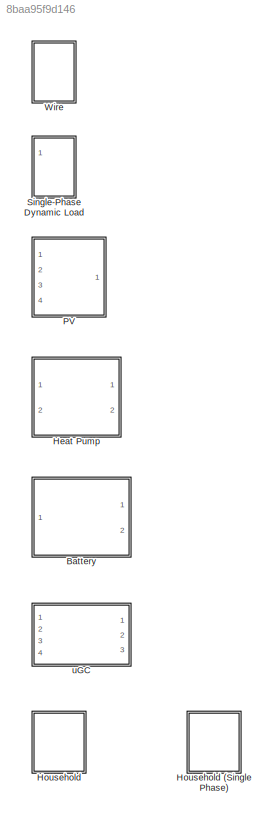
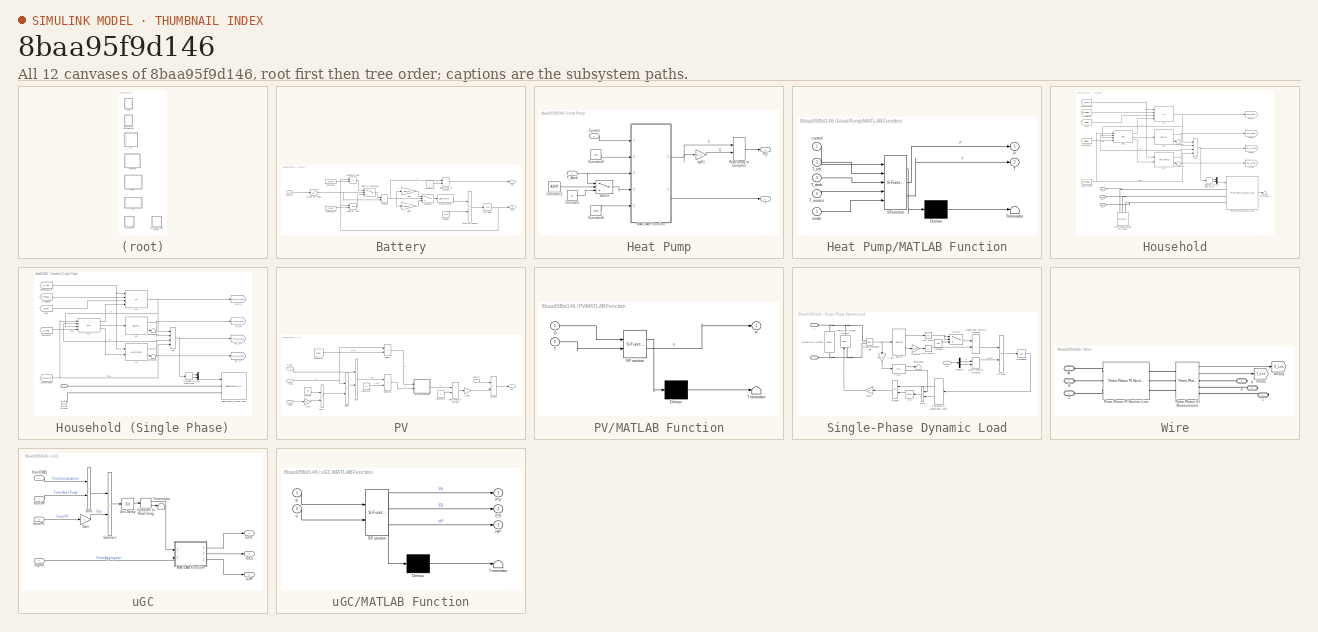
[diagram: thumbnail index - all 12 canvases of the model, root first then tree order]
MODEL slx_8baa95f9d146
KIND library
CONFIG AbsTol = auto
CONFIG EnableMultiTasking = off
CONFIG FixedStep = auto
CONFIG MaxStep = auto
CONFIG MinStep = auto
CONFIG RelTol = 1e-3
CONFIG SampleTimeConstraint = Unconstrained
CONFIG SolverName = VariableStepAuto
CONFIG StartTime = 0.0
CONFIG StopTime = 10.0
BLOCK [SubSystem] Battery
  Ports = [1, 2]
  RequestExecContextInheritance = off
BLOCK [Constant] Battery/Capacity
  Value = Cap
BLOCK [Constant] Battery/Constant2
  Value = SoCmax
BLOCK [Constant] Battery/Constant3
  Value = SoCmin
BLOCK [Constant] Battery/Constant4
  Value = 0
BLOCK [Inport] Battery/Control
BLOCK [Switch] Battery/Depth of Discharge
  Criteria = u2 > Threshold
  InputSameDT = off
  SaturateOnIntegerOverflow = off
BLOCK [Switch] Battery/Efficiency
  Criteria = u2 > Threshold
  InputSameDT = off
  SaturateOnIntegerOverflow = off
BLOCK [Gain] Battery/Gain
  Gain = eta_in
BLOCK [Gain] Battery/Gain1
  Gain = 1/eta_out
BLOCK [Saturate] Battery/Maximum Power
  LowerLimit = Pout
  UpperLimit = Pin
BLOCK [RelationalOperator] Battery/Maximum SoC
  InputSameDT = off
  Operator = <=
  OutDataTypeStr = boolean
  Ports = [2, 1]
  RndMeth = Simplest
BLOCK [RelationalOperator] Battery/Minimum SoC
  InputSameDT = off
  OutDataTypeStr = boolean
  Ports = [2, 1]
  RndMeth = Simplest
BLOCK [Outport] Battery/PQ
BLOCK [Product] Battery/Product
  Ports = [2, 1]
BLOCK [RealImagToComplex] Battery/Real-Imag to Complex
  Ports = [2, 1]
BLOCK [Outport] Battery/SoC
  Port = 2
BLOCK [Product] Battery/State of Charge
  Inputs = */
  Ports = [2, 1]
BLOCK [DiscreteIntegrator] Battery/Stored Energy
  ICPrevOutput = DiscIntNeverNeededParam
  ICPrevScaledInput = DiscIntNeverNeededParam
  InitialCondition = Cap*SoCin
  InitialConditionSetting = Auto
  IntegratorMethod = Integration: Backward Euler
  LimitOutput = on
  LowerSaturationLimit = 0
  Ports = [1, 1]
  SampleTime = 1e-4
  UpperSaturationLimit = Cap
BLOCK [UnitDelay] Battery/Unit Delay
  HasFrameUpgradeWarning = on
  SampleTime = -1
BLOCK [SubSystem] Heat Pump
  Ports = [2, 2]
  RequestExecContextInheritance = off
BLOCK [Constant] Heat Pump/Constant
  Value = 13
BLOCK [Constant] Heat Pump/Constant1
  Value = ASHP
BLOCK [Constant] Heat Pump/Constant2
  Value = Tset
BLOCK [Constant] Heat Pump/Constant6
  Value = Mode
BLOCK [Inport] Heat Pump/Control
  Port = 2
BLOCK [SubSystem] Heat Pump/MATLAB Function
  ErrorFcn = Stateflow.Translate.translate
  PermitHierarchicalResolution = ExplicitOnly
  Ports = [5, 2]
  RequestExecContextInheritance = off
  SFBlockType = MATLAB Function
  SystemSampleTime = MFSystemSampleTime
  TreatAsAtomicUnit = on
BLOCK [Demux] Heat Pump/MATLAB Function/ Demux 
  Outputs = 1
  Ports = [1, 1]
BLOCK [S-Function] Heat Pump/MATLAB Function/ SFunction 
  EnableBusSupport = on
  FunctionName = sf_sfun
  Parameters = C,H,P_HP,T_init,coeffs,tequiv
  PortCounts = [5 3]
  Ports = [5, 3]
  SFcnIsStateOwnerBlock = off
  SFunctionDeploymentMode = off
  Tag = Stateflow S-Function 4
BLOCK [Terminator] Heat Pump/MATLAB Function/ Terminator 
BLOCK [Outport] Heat Pump/MATLAB Function/P
BLOCK [Outport] Heat Pump/MATLAB Function/T
  Port = 2
BLOCK [Inport] Heat Pump/MATLAB Function/T_amb
  Port = 3
BLOCK [Inport] Heat Pump/MATLAB Function/T_set
  Port = 2
BLOCK [Inport] Heat Pump/MATLAB Function/T_source
  Port = 4
BLOCK [Inport] Heat Pump/MATLAB Function/control
BLOCK [Inport] Heat Pump/MATLAB Function/mode
  Port = 5
BLOCK [Outport] Heat Pump/PQ
BLOCK [RealImagToComplex] Heat Pump/Real-Imag to Complex
  Ports = [2, 1]
BLOCK [Switch] Heat Pump/Switch
  Criteria = u2 > Threshold
  InputSameDT = off
  SaturateOnIntegerOverflow = off
  Threshold = 0.5
BLOCK [Outport] Heat Pump/T
  Port = 2
BLOCK [Inport] Heat Pump/T_Amb
BLOCK [Gain] Heat Pump/tg(fi)
  Gain = sqrt(1-cosfi^2)/cosfi
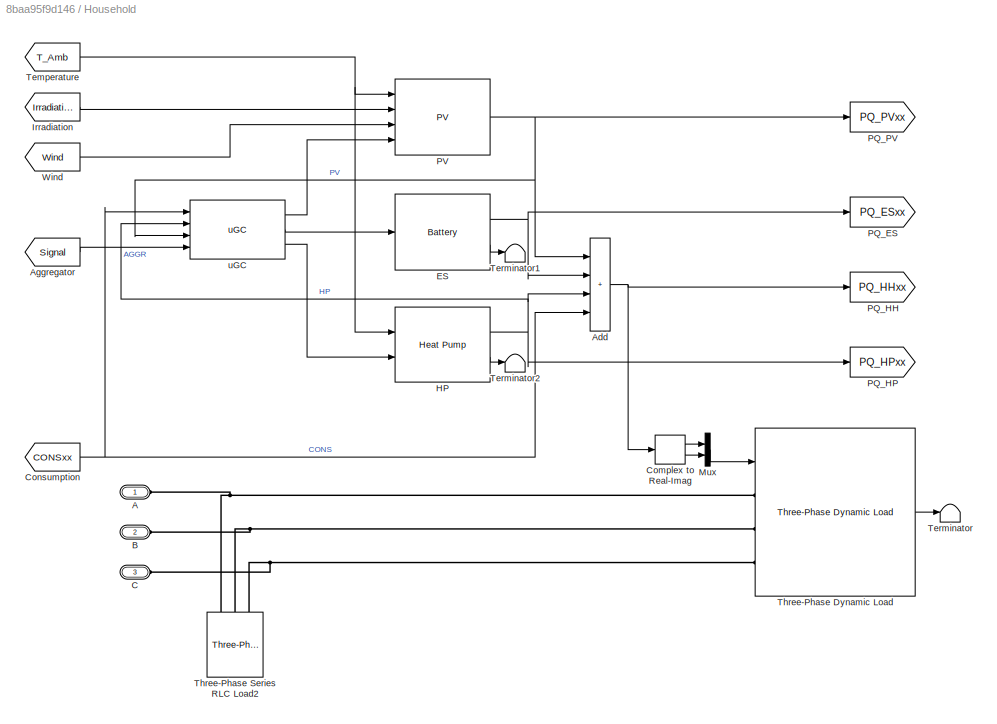
BLOCK [SubSystem] Household
  Ports = [0, 0, 0, 0, 0, 3]
  RequestExecContextInheritance = off
BLOCK [SubSystem] Household (Single Phase)
  Ports = [0, 0, 0, 0, 0, 1]
  RequestExecContextInheritance = off
BLOCK [PMIOPort] Household (Single Phase)/+
  Side = Left
BLOCK [Sum] Household (Single Phase)/Add
  IconShape = rectangular
  Inputs = 4
  Ports = [4, 1]
BLOCK [From] Household (Single Phase)/Aggregator
  GotoTag = Signal
BLOCK [ComplexToRealImag] Household (Single Phase)/Complex to Real-Imag
  Ports = [1, 2]
BLOCK [From] Household (Single Phase)/Consumption
  GotoTag = CONSxx
BLOCK [Reference] Household (Single Phase)/ES  REF=$bdroot/Battery
  Ports = [1, 2]
  SourceBlock = $bdroot/Battery
  SourceType = Battery (Three Phase)
BLOCK [Reference] Household (Single Phase)/Ground  REF=spsGroundLib/Ground
  NameLocation = right
  Ports = [0, 0, 0, 0, 0, 1]
  SourceBlock = spsGroundLib/Ground
  SourceProductBaseCode = PS
  SourceType = Ground
BLOCK [Reference] Household (Single Phase)/HP  REF=$bdroot/Heat Pump
  Ports = [2, 2]
  SourceBlock = $bdroot/Heat Pump
  SourceType = Heat Pump (Three Phase)
BLOCK [From] Household (Single Phase)/Irradiation
  GotoTag = Irradiation
  TagVisibility = global
BLOCK [Mux] Household (Single Phase)/Mux
  DisplayOption = bar
  Inputs = 2
  Ports = [2, 1]
BLOCK [Goto] Household (Single Phase)/PQ_ES
  GotoTag = PQ_ESxx
BLOCK [Goto] Household (Single Phase)/PQ_HH
  GotoTag = PQ_HHxx
BLOCK [Goto] Household (Single Phase)/PQ_HP
  GotoTag = PQ_HPxx
BLOCK [Goto] Household (Single Phase)/PQ_PV
  GotoTag = PQ_PVxx
BLOCK [Reference] Household (Single Phase)/PV  REF=$bdroot/PV
  Ports = [4, 1]
  SourceBlock = $bdroot/PV
  SourceType = PV (Three Phase)
BLOCK [Reference] Household (Single Phase)/Single-Phase Dynamic Load  REF=$bdroot/Single-Phase
Dynamic Load
  Ports = [1, 0, 0, 0, 0, 2]
  SourceBlock = $bdroot/Single-Phase\nDynamic Load
  SourceType = Single-Phase Dynamic Load
BLOCK [From] Household (Single Phase)/Temperature
  GotoTag = T_Amb
  TagVisibility = global
BLOCK [Terminator] Household (Single Phase)/Terminator1
BLOCK [Terminator] Household (Single Phase)/Terminator2
BLOCK [From] Household (Single Phase)/Wind
  GotoTag = Wind
  TagVisibility = global
BLOCK [Reference] Household (Single Phase)/uGC  REF=$bdroot/uGC
  Ports = [4, 3]
  SourceBlock = $bdroot/uGC
  SourceType = Microgrid Controller
BLOCK [PMIOPort] Household/A
  Side = Left
BLOCK [Sum] Household/Add
  IconShape = rectangular
  Inputs = 4
  Ports = [4, 1]
BLOCK [From] Household/Aggregator
  GotoTag = Signal
BLOCK [PMIOPort] Household/B
  Port = 2
  Side = Left
BLOCK [PMIOPort] Household/C
  Port = 3
  Side = Left
BLOCK [ComplexToRealImag] Household/Complex to Real-Imag
  Ports = [1, 2]
BLOCK [From] Household/Consumption
  GotoTag = CONSxx
BLOCK [Reference] Household/ES  REF=$bdroot/Battery
  Ports = [1, 2]
  SourceBlock = $bdroot/Battery
  SourceType = Battery (Three Phase)
BLOCK [Reference] Household/HP  REF=$bdroot/Heat Pump
  Ports = [2, 2]
  SourceBlock = $bdroot/Heat Pump
  SourceType = Heat Pump (Three Phase)
BLOCK [From] Household/Irradiation
  GotoTag = Irradiation
  TagVisibility = global
BLOCK [Mux] Household/Mux
  DisplayOption = bar
  Inputs = 2
  Ports = [2, 1]
BLOCK [Goto] Household/PQ_ES
  GotoTag = PQ_ESxx
BLOCK [Goto] Household/PQ_HH
  GotoTag = PQ_HHxx
BLOCK [Goto] Household/PQ_HP
  GotoTag = PQ_HPxx
BLOCK [Goto] Household/PQ_PV
  GotoTag = PQ_PVxx
BLOCK [Reference] Household/PV  REF=$bdroot/PV
  Ports = [4, 1]
  SourceBlock = $bdroot/PV
  SourceType = PV (Three Phase)
BLOCK [From] Household/Temperature
  GotoTag = T_Amb
  TagVisibility = global
BLOCK [Terminator] Household/Terminator
BLOCK [Terminator] Household/Terminator1
BLOCK [Terminator] Household/Terminator2
BLOCK [Reference] Household/Three-Phase Dynamic Load  REF=spsThreePhaseDynamicLoadLib/Three-Phase
Dynamic Load
  Ports = [1, 1, 0, 0, 0, 3]
  SourceBlock = spsThreePhaseDynamicLoadLib/Three-Phase\nDynamic Load
  SourceProductBaseCode = PS
  SourceType = Three-Phase Dynamic Load
BLOCK [Reference] Household/Three-Phase Series RLC Load2  REF=spsThreePhaseSeriesRLCLoadLib/Three-Phase
Series RLC Load
  AttributesFormatString = \n
  Ports = [0, 0, 0, 0, 0, 3]
  SourceBlock = spsThreePhaseSeriesRLCLoadLib/Three-Phase\nSeries RLC Load
  SourceProductBaseCode = PS
  SourceType = Three-Phase Series RLC Load
BLOCK [From] Household/Wind
  GotoTag = Wind
  TagVisibility = global
BLOCK [Reference] Household/uGC  REF=$bdroot/uGC
  Ports = [4, 3]
  SourceBlock = $bdroot/uGC
  SourceType = Microgrid Controller
BLOCK [SubSystem] PV
  Ports = [4, 1]
  RequestExecContextInheritance = off
BLOCK [Constant] PV/Constant
  Value = U0
BLOCK [Constant] PV/Constant1
  Value = 0
BLOCK [Constant] PV/Constant2
  Value = 1000
BLOCK [Constant] PV/Constant3
  Value = 25
BLOCK [Inport] PV/Control
  Port = 4
BLOCK [Product] PV/Divide
  Inputs = */
  Ports = [2, 1]
BLOCK [Product] PV/Divide1
  Inputs = */
  Ports = [2, 1]
BLOCK [Gain] PV/Gain
  Gain = U1
BLOCK [Gain] PV/Gain1
  Gain = -1
BLOCK [Inport] PV/Irrad
  Port = 2
BLOCK [SubSystem] PV/MATLAB Function
  ErrorFcn = Stateflow.Translate.translate
  PermitHierarchicalResolution = ExplicitOnly
  Ports = [2, 1]
  RequestExecContextInheritance = off
  SFBlockType = MATLAB Function
  TreatAsAtomicUnit = on
BLOCK [Demux] PV/MATLAB Function/ Demux 
  Outputs = 1
  Ports = [1, 1]
BLOCK [S-Function] PV/MATLAB Function/ SFunction 
  EnableBusSupport = on
  FunctionName = sf_sfun
  Parameters = P_STCm,k1,k2,k3,k4,k5,k6
  PortCounts = [2 2]
  Ports = [2, 2]
  SFcnIsStateOwnerBlock = off
  SFunctionDeploymentMode = off
  Tag = Stateflow S-Function 1
BLOCK [Terminator] PV/MATLAB Function/ Terminator 
BLOCK [Inport] PV/MATLAB Function/G
BLOCK [Outport] PV/MATLAB Function/P
BLOCK [Inport] PV/MATLAB Function/T
  Port = 2
BLOCK [Outport] PV/PQ
BLOCK [Product] PV/Product
  Ports = [2, 1]
BLOCK [RealImagToComplex] PV/Real-Imag to Complex
  Ports = [2, 1]
BLOCK [Sum] PV/Subtract
  IconShape = rectangular
  Inputs = +-
  Ports = [2, 1]
BLOCK [Sum] PV/Sum
  IconShape = rectangular
  Ports = [2, 1]
BLOCK [Sum] PV/Sum1
  IconShape = rectangular
  Ports = [2, 1]
BLOCK [Inport] PV/T_Amb
BLOCK [Inport] PV/Wind
  Port = 3
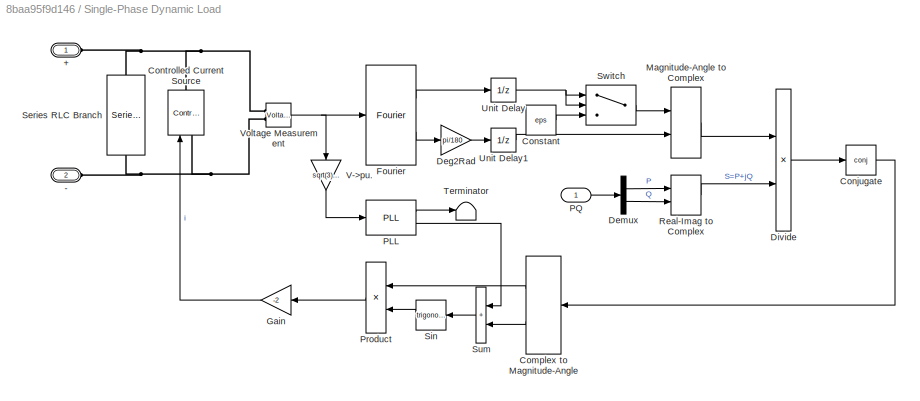
BLOCK [SubSystem] Single-Phase Dynamic Load
  Ports = [1, 0, 0, 0, 0, 2]
  RequestExecContextInheritance = off
BLOCK [PMIOPort] Single-Phase Dynamic Load/+
  Side = Left
BLOCK [PMIOPort] Single-Phase Dynamic Load/-
  Port = 2
  Side = Left
BLOCK [ComplexToMagnitudeAngle] Single-Phase Dynamic Load/Complex to Magnitude-Angle
  Ports = [1, 2]
BLOCK [Math] Single-Phase Dynamic Load/Conjugate
  Operator = conj
  Ports = [1, 1]
  RndMeth = Zero
  SignedPower = on
BLOCK [Constant] Single-Phase Dynamic Load/Constant
  Value = eps
BLOCK [Reference] Single-Phase Dynamic Load/Controlled Current Source  REF=spsControlledCurrentSourceLib/Controlled Current Source
  Ports = [1, 0, 0, 0, 0, 1, 1]
  SourceBlock = spsControlledCurrentSourceLib/Controlled Current Source
  SourceProductBaseCode = PS
  SourceType = Controlled Current Source
BLOCK [Gain] Single-Phase Dynamic Load/Deg2Rad
  Gain = pi/180
BLOCK [Demux] Single-Phase Dynamic Load/Demux
  Outputs = 2
  Ports = [1, 2]
BLOCK [Product] Single-Phase Dynamic Load/Divide
  Inputs = /*
  Ports = [2, 1]
BLOCK [Reference] Single-Phase Dynamic Load/Fourier  REF=spsFourierLib/Fourier
  Ports = [1, 2]
  SourceBlock = spsFourierLib/Fourier
  SourceProductBaseCode = PS
  SourceType = Fourier
BLOCK [Gain] Single-Phase Dynamic Load/Gain
  Gain = -2
BLOCK [MagnitudeAngleToComplex] Single-Phase Dynamic Load/Magnitude-Angle to Complex
  Ports = [2, 1]
BLOCK [Reference] Single-Phase Dynamic Load/PLL  REF=spsPLLLib/PLL
  Ports = [1, 2]
  SourceBlock = spsPLLLib/PLL
  SourceProductBaseCode = PS
  SourceType = PLL
BLOCK [Inport] Single-Phase Dynamic Load/PQ
BLOCK [Product] Single-Phase Dynamic Load/Product
  Ports = [2, 1]
BLOCK [RealImagToComplex] Single-Phase Dynamic Load/Real-Imag to Complex
  Ports = [2, 1]
BLOCK [Reference] Single-Phase Dynamic Load/Series RLC Branch  REF=spsSeriesRLCBranchLib/Series RLC Branch
  NameLocation = left
  Ports = [0, 0, 0, 0, 0, 1, 1]
  SourceBlock = spsSeriesRLCBranchLib/Series RLC Branch
  SourceProductBaseCode = PS
  SourceType = Series RLC Branch
BLOCK [Trigonometry] Single-Phase Dynamic Load/Sin
  Ports = [1, 1]
BLOCK [Sum] Single-Phase Dynamic Load/Sum
  IconShape = rectangular
  Ports = [2, 1]
BLOCK [Switch] Single-Phase Dynamic Load/Switch
  Criteria = u2 ~= 0
  InputSameDT = off
  SaturateOnIntegerOverflow = off
BLOCK [Terminator] Single-Phase Dynamic Load/Terminator
BLOCK [UnitDelay] Single-Phase Dynamic Load/Unit Delay
  HasFrameUpgradeWarning = on
  SampleTime = -1
BLOCK [UnitDelay] Single-Phase Dynamic Load/Unit Delay1
  HasFrameUpgradeWarning = on
  SampleTime = -1
BLOCK [Gain] Single-Phase Dynamic Load/V->pu.
  Gain = sqrt(3)/400
  NameLocation = left
BLOCK [Reference] Single-Phase Dynamic Load/Voltage Measurement  REF=spsVoltageMeasurementLib/Voltage Measurement
  Ports = [0, 1, 0, 0, 0, 2]
  SourceBlock = spsVoltageMeasurementLib/Voltage Measurement
  SourceProductBaseCode = PS
  SourceType = Voltage Measurement
  UserDataPersistent = on
BLOCK [SubSystem] Wire
  Ports = [0, 0, 0, 0, 0, 3, 3]
  RequestExecContextInheritance = off
BLOCK [PMIOPort] Wire/A
  Side = Left
BLOCK [PMIOPort] Wire/B
  Port = 2
  Side = Left
BLOCK [PMIOPort] Wire/C
  Port = 3
  Side = Left
BLOCK [Goto] Wire/Imeas
  GotoTag = I_Lxx
BLOCK [Reference] Wire/Three-Phase PI Section Line  REF=spsThreePhasePISectionLineLib/Three-Phase
PI Section Line
  AttributesFormatString = \n
  Ports = [0, 0, 0, 0, 0, 3, 3]
  SourceBlock = spsThreePhasePISectionLineLib/Three-Phase\nPI Section Line
  SourceProductBaseCode = PS
  SourceType = Three-Phase PI Section Line
BLOCK [Reference] Wire/Three-Phase V-I Measurement  REF=spsThreePhaseVIMeasurementLib/Three-Phase
V-I Measurement
  Ports = [0, 2, 0, 0, 0, 3, 3]
  SourceBlock = spsThreePhaseVIMeasurementLib/Three-Phase\nV-I Measurement
  SourceProductBaseCode = PS
  SourceType = Three-Phase VI Measurement
BLOCK [Goto] Wire/Vmeas
  GotoTag = V_Lxx
BLOCK [PMIOPort] Wire/a
  Port = 4
  Side = Right
BLOCK [PMIOPort] Wire/b
  Port = 5
  Side = Right
BLOCK [PMIOPort] Wire/c
  Port = 6
  Side = Right
BLOCK [SubSystem] uGC
  Ports = [4, 3]
  RequestExecContextInheritance = off
BLOCK [ComplexToRealImag] uGC/Complex to Real-Imag
  Ports = [1, 2]
BLOCK [Gain] uGC/Gain
  Gain = -1
BLOCK [SubSystem] uGC/MATLAB Function
  ErrorFcn = Stateflow.Translate.translate
  PermitHierarchicalResolution = ExplicitOnly
  Ports = [2, 3]
  RequestExecContextInheritance = off
  SFBlockType = MATLAB Function
  TreatAsAtomicUnit = on
BLOCK [Demux] uGC/MATLAB Function/ Demux 
  Outputs = 1
  Ports = [1, 1]
BLOCK [S-Function] uGC/MATLAB Function/ SFunction 
  EnableBusSupport = off
  FunctionName = sf_sfun
  PortCounts = [2 4]
  Ports = [2, 4]
  SFcnIsStateOwnerBlock = off
  SFunctionDeploymentMode = off
  Tag = Stateflow S-Function 5
BLOCK [Terminator] uGC/MATLAB Function/ Terminator 
BLOCK [Outport] uGC/MATLAB Function/ES
  Port = 2
BLOCK [Outport] uGC/MATLAB Function/HP
  Port = 3
BLOCK [Outport] uGC/MATLAB Function/PV
BLOCK [Inport] uGC/MATLAB Function/p
BLOCK [Inport] uGC/MATLAB Function/u
  Port = 2
BLOCK [Inport] uGC/Signal
  Port = 4
BLOCK [Sum] uGC/Subtract
  IconShape = rectangular
  Inputs = -+
  Ports = [2, 1]
BLOCK [Sum] uGC/Sum
  IconShape = rectangular
  Ports = [2, 1]
BLOCK [Terminator] uGC/Terminator
BLOCK [UnitDelay] uGC/Unit Delay
  HasFrameUpgradeWarning = on
  SampleTime = -1
BLOCK [Inport] uGC/fromCONS
BLOCK [Inport] uGC/fromHP
  Port = 2
BLOCK [Inport] uGC/fromPV
  Port = 3
BLOCK [Outport] uGC/toES
  Port = 2
BLOCK [Outport] uGC/toHP
  Port = 3
BLOCK [Outport] uGC/toPV
LINE Single-Phase Dynamic Load/Complex to Magnitude-Angle:1 -> Single-Phase Dynamic Load/Product:1
LINE Single-Phase Dynamic Load/Complex to Magnitude-Angle:2 -> Single-Phase Dynamic Load/Sum:2
LINE Single-Phase Dynamic Load/Conjugate:1 -> Single-Phase Dynamic Load/Complex to Magnitude-Angle:1
LINE Single-Phase Dynamic Load/Constant:1 -> Single-Phase Dynamic Load/Switch:3
LINE Single-Phase Dynamic Load/Deg2Rad:1 -> Single-Phase Dynamic Load/Unit Delay1:1
LINE Single-Phase Dynamic Load/Demux:1 -> Single-Phase Dynamic Load/Real-Imag to Complex:1
LINE Single-Phase Dynamic Load/Demux:2 -> Single-Phase Dynamic Load/Real-Imag to Complex:2
LINE Single-Phase Dynamic Load/Divide:1 -> Single-Phase Dynamic Load/Conjugate:1
LINE Single-Phase Dynamic Load/Fourier:1 -> Single-Phase Dynamic Load/Unit Delay:1
LINE Single-Phase Dynamic Load/Fourier:2 -> Single-Phase Dynamic Load/Deg2Rad:1
LINE Single-Phase Dynamic Load/Gain:1 -> Single-Phase Dynamic Load/Controlled Current Source:1
LINE Single-Phase Dynamic Load/Magnitude-Angle to Complex:1 -> Single-Phase Dynamic Load/Divide:1
LINE Single-Phase Dynamic Load/PLL:1 -> Single-Phase Dynamic Load/Terminator:1
LINE Single-Phase Dynamic Load/PLL:2 -> Single-Phase Dynamic Load/Sum:1
LINE Single-Phase Dynamic Load/PQ:1 -> Single-Phase Dynamic Load/Demux:1
LINE Single-Phase Dynamic Load/Product:1 -> Single-Phase Dynamic Load/Gain:1
LINE Single-Phase Dynamic Load/Real-Imag to Complex:1 -> Single-Phase Dynamic Load/Divide:2
LINE Single-Phase Dynamic Load/Sin:1 -> Single-Phase Dynamic Load/Product:2
LINE Single-Phase Dynamic Load/Sum:1 -> Single-Phase Dynamic Load/Sin:1
LINE Single-Phase Dynamic Load/Switch:1 -> Single-Phase Dynamic Load/Magnitude-Angle to Complex:1
LINE Single-Phase Dynamic Load/Unit Delay1:1 -> Single-Phase Dynamic Load/Magnitude-Angle to Complex:2
NET Single-Phase Dynamic Load/Unit Delay:1 -> Single-Phase Dynamic Load/Switch:1, Single-Phase Dynamic Load/Switch:2
LINE Single-Phase Dynamic Load/V->pu.:1 -> Single-Phase Dynamic Load/PLL:1
NET Single-Phase Dynamic Load/Voltage Measurement:1 -> Single-Phase Dynamic Load/Fourier:1, Single-Phase Dynamic Load/V->pu.:1
LINE Wire/Three-Phase V-I Measurement:1 -> Wire/Vmeas:1
LINE Wire/Three-Phase V-I Measurement:2 -> Wire/Imeas:1
PNET net1: Single-Phase Dynamic Load/+:RConn1 -- Single-Phase Dynamic Load/Controlled Current Source:RConn1 -- Single-Phase Dynamic Load/Series RLC Branch:LConn1 -- Single-Phase Dynamic Load/Voltage Measurement:LConn1
PNET net2: Single-Phase Dynamic Load/-:RConn1 -- Single-Phase Dynamic Load/Controlled Current Source:LConn1 -- Single-Phase Dynamic Load/Series RLC Branch:RConn1 -- Single-Phase Dynamic Load/Voltage Measurement:LConn2
PLINE Wire/A:RConn1 -- Wire/Three-Phase PI Section Line:LConn1
PLINE Wire/B:RConn1 -- Wire/Three-Phase PI Section Line:LConn2
PLINE Wire/C:RConn1 -- Wire/Three-Phase PI Section Line:LConn3
PLINE Wire/Three-Phase PI Section Line:RConn1 -- Wire/Three-Phase V-I Measurement:LConn1
PLINE Wire/Three-Phase PI Section Line:RConn2 -- Wire/Three-Phase V-I Measurement:LConn2
PLINE Wire/Three-Phase PI Section Line:RConn3 -- Wire/Three-Phase V-I Measurement:LConn3
PLINE Wire/Three-Phase V-I Measurement:RConn1 -- Wire/a:RConn1
PLINE Wire/Three-Phase V-I Measurement:RConn2 -- Wire/b:RConn1
PLINE Wire/Three-Phase V-I Measurement:RConn3 -- Wire/c:RConn1
note: NET lines group one-source signal fan-out (src -> all destinations, sorted); 1:1 wires keep LINE; PNET lines group multi-terminal physical nets as a canonical sorted terminal list (undirected conserving connections); 2-terminal nets keep the pairwise PLINE form
CHART PV/MATLAB Function states=1 transitions=1
  STATE_LABEL 'eML_blk_kernel()'
  STATE_LABEL 'SCRIPT:\nfunction P = fcn(G,T, P_STCm, k1, k2, k3, k4, k5, k6)\n    if G < eps\n        P = 0;\n    else\n        P = G*(P_STCm + k1*log(G) + k2*log(G)^2 + k3*T + k4*T*log(G) + k5*T*log(G)^2 + k6*T^2);\n    end\nend'
CHART Heat Pump/MATLAB Function states=1 transitions=1
  STATE_LABEL 'eML_blk_kernel()'
  STATE_LABEL 'SCRIPT:\n% OFF = 1\n% NORMAL = 2\n% ON = 3\n% SUPERHEAT_A = 4\n% SUPERHEAT_B = 5\n\nfunction [P, T] = fcn(control, T_set, T_amb, T_source, mode, P_HP, H, C, coeffs, T_init, tequiv)\n    HYST = 0.5;\n    HYST_adj = 1;\n    min_run_time = 3;\n    min_pause_time = 6;\n    T_sink = 45;\n    \n    persistent pause_time;\n    if isempty(pause_time)\n        pause_time = 0;\n    end\n    persistent run_time;\n    if isempt...<+2377ch>'
CHART uGC/MATLAB Function states=1 transitions=1
  STATE_LABEL 'eML_blk_kernel()'
  STATE_LABEL 'SCRIPT:\nfunction [PV, ES, HP] = fcn(p, u)\n    switch u\n        case -1 % down\n            PV = 1;\n            ES = -inf;\n            HP = 1;\n        case 0 % normal\n            PV = 1;\n            ES = p;\n            HP = 2;\n        case 1 % up\n            PV = 0;\n            ES = inf;\n            HP = 4;\n        otherwise % normal\n            PV = 1;\n            ES = p;\n            HP = 2;\n    en...<+6ch>'
CHART  states=0 transitions=0
CHART  states=0 transitions=0
CHART  states=0 transitions=0
